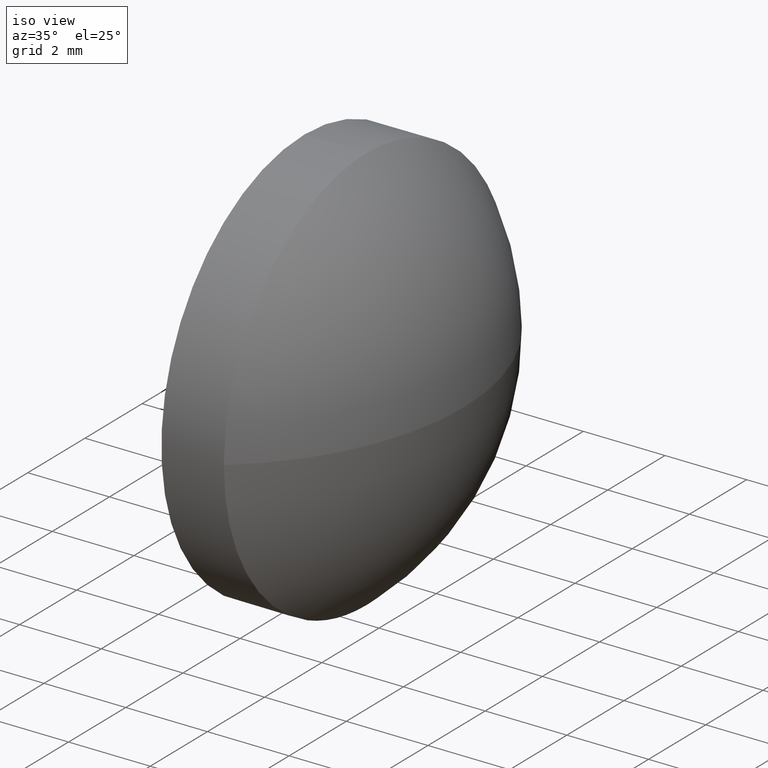
[diagram: clean part render]
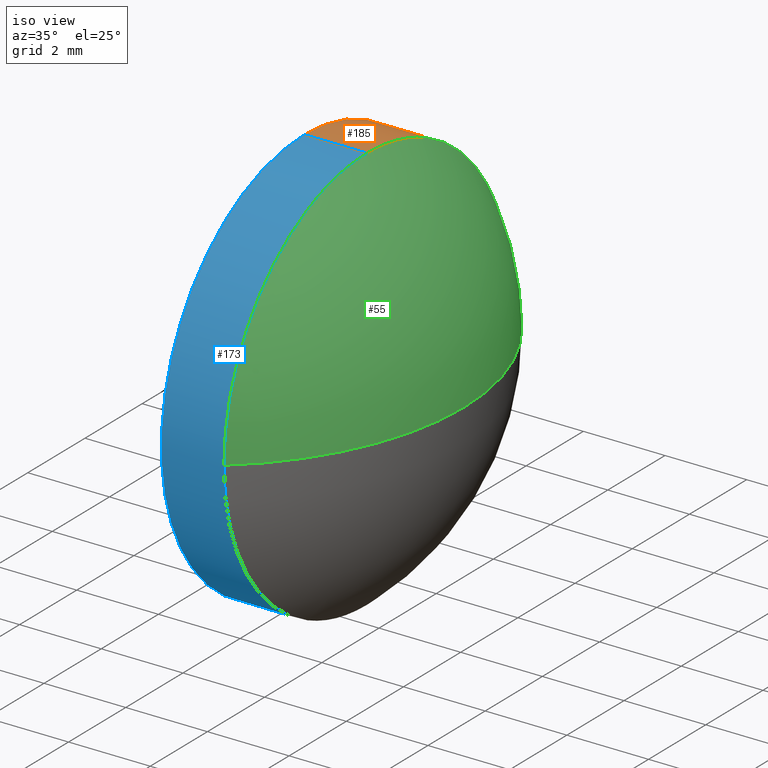
[diagram: same view with three faces highlighted in distinct colors, each labeled with its STEP entity id]
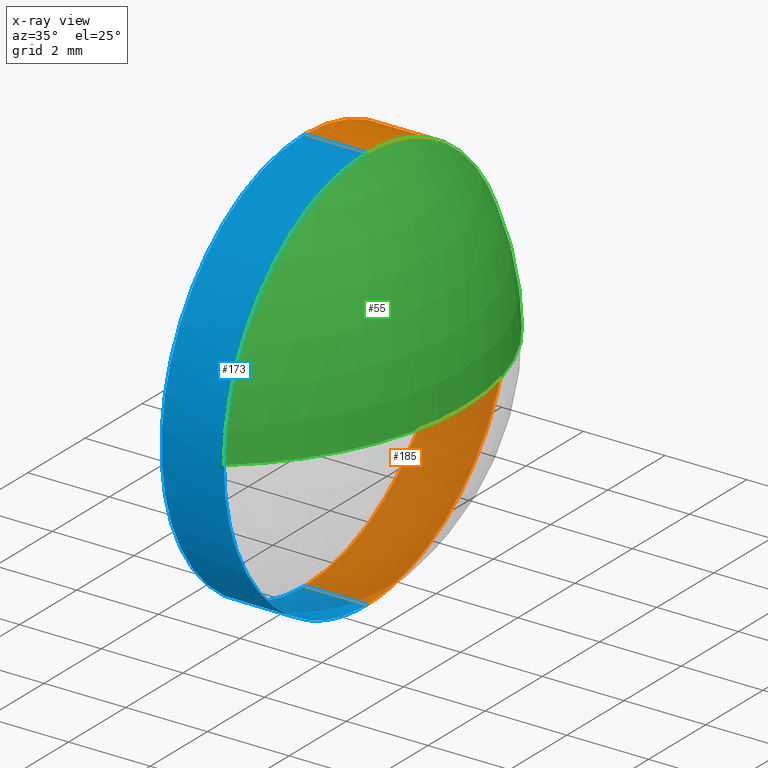
[diagram: x-ray of the same camera — body ghosted, the three highlighted faces saturated]
A machine part, iso view with three faces highlighted in distinct colors.
The next image is the same camera in x-ray (body ghosted, the three faces saturated) — at least one of them is partly hidden behind the body in this view.
Their STEP definitions:

[orange] entity #185 — the highlighted cylindrical surface (partial cylindrical patch) has radius 5 mm, axis along (-1, -0, -0).
#4 = DIRECTION ( 'NONE',  ( -1.000000000000000000, -0.0000000000000000000, -0.0000000000000000000 ) ) ;
#6 = DIRECTION ( 'NONE',  ( -1.000000000000000000, -0.0000000000000000000, -0.0000000000000000000 ) ) ;
#7 = CARTESIAN_POINT ( 'NONE',  ( 535.9096273029953200, 134.3762019213367000, -5.000000000000004400 ) ) ;
#19 = VERTEX_POINT ( 'NONE', #22 ) ;
#21 = ORIENTED_EDGE ( 'NONE', *, *, #24, .T. ) ;
#22 = CARTESIAN_POINT ( 'NONE',  ( 537.4396273029952900, 139.3762019213367000, 0.0000000000000000000 ) ) ;
#24 = EDGE_CURVE ( 'NONE', #139, #36, #82, .T. ) ;
#30 = CARTESIAN_POINT ( 'NONE',  ( 534.6781067289280100, 134.3762019213367000, 0.0000000000000000000 ) ) ;
#36 = VERTEX_POINT ( 'NONE', #7 ) ;
#39 = DIRECTION ( 'NONE',  ( -1.000000000000000000, -0.0000000000000000000, -0.0000000000000000000 ) ) ;
#45 = EDGE_CURVE ( 'NONE', #19, #139, #186, .T. ) ;
#49 = AXIS2_PLACEMENT_3D ( 'NONE', #178, #6, #111 ) ;
#59 = FACE_OUTER_BOUND ( 'NONE', #143, .T. ) ;
#63 = VERTEX_POINT ( 'NONE', #71 ) ;
#68 = CARTESIAN_POINT ( 'NONE',  ( 534.6781067289280100, 134.3762019213367000, -5.000000000000004400 ) ) ;
#71 = CARTESIAN_POINT ( 'NONE',  ( 537.4396273029952900, 134.3762019213367000, 5.000000000000004400 ) ) ;
#74 = LINE ( 'NONE', #157, #107 ) ;
#76 = ORIENTED_EDGE ( 'NONE', *, *, #79, .F. ) ;
#79 = EDGE_CURVE ( 'NONE', #63, #90, #74, .T. ) ;
#82 = LINE ( 'NONE', #68, #175 ) ;
#84 = DIRECTION ( 'NONE',  ( -1.000000000000000000, -0.0000000000000000000, -0.0000000000000000000 ) ) ;
#87 = DIRECTION ( 'NONE',  ( -1.000000000000000000, -0.0000000000000000000, -0.0000000000000000000 ) ) ;
#88 = DIRECTION ( 'NONE',  ( 0.0000000000000000000, 0.0000000000000000000, 1.000000000000000000 ) ) ;
#89 = CYLINDRICAL_SURFACE ( 'NONE', #123, 5.000000000000004400 ) ;
#90 = VERTEX_POINT ( 'NONE', #101 ) ;
#92 = AXIS2_PLACEMENT_3D ( 'NONE', #140, #84, #167 ) ;
#93 = ORIENTED_EDGE ( 'NONE', *, *, #45, .T. ) ;
#101 = CARTESIAN_POINT ( 'NONE',  ( 535.9096273029953200, 134.3762019213367000, 5.000000000000004400 ) ) ;
#103 = EDGE_CURVE ( 'NONE', #63, #19, #181, .T. ) ;
#107 = VECTOR ( 'NONE', #87, 1000.000000000000000 ) ;
#111 = DIRECTION ( 'NONE',  ( 0.0000000000000000000, 0.0000000000000000000, 1.000000000000000000 ) ) ;
#123 = AXIS2_PLACEMENT_3D ( 'NONE', #30, #4, #136 ) ;
#136 = DIRECTION ( 'NONE',  ( 0.0000000000000000000, 0.0000000000000000000, 1.000000000000000000 ) ) ;
#139 = VERTEX_POINT ( 'NONE', #152 ) ;
#140 = CARTESIAN_POINT ( 'NONE',  ( 537.4396273029952900, 134.3762019213367000, 0.0000000000000000000 ) ) ;
#143 = EDGE_LOOP ( 'NONE', ( #93, #21, #174, #76, #171 ) ) ;
#148 = CIRCLE ( 'NONE', #49, 5.000000000000004400 ) ;
#152 = CARTESIAN_POINT ( 'NONE',  ( 537.4396273029952900, 134.3762019213367000, -5.000000000000004400 ) ) ;
#153 = EDGE_CURVE ( 'NONE', #90, #36, #148, .T. ) ;
#157 = CARTESIAN_POINT ( 'NONE',  ( 534.6781067289280100, 134.3762019213367000, 5.000000000000004400 ) ) ;
#158 = CARTESIAN_POINT ( 'NONE',  ( 537.4396273029952900, 134.3762019213367000, 0.0000000000000000000 ) ) ;
#167 = DIRECTION ( 'NONE',  ( 0.0000000000000000000, 0.0000000000000000000, 1.000000000000000000 ) ) ;
#170 = DIRECTION ( 'NONE',  ( -1.000000000000000000, -0.0000000000000000000, -0.0000000000000000000 ) ) ;
#171 = ORIENTED_EDGE ( 'NONE', *, *, #103, .T. ) ;
#174 = ORIENTED_EDGE ( 'NONE', *, *, #153, .F. ) ;
#175 = VECTOR ( 'NONE', #39, 1000.000000000000000 ) ;
#178 = CARTESIAN_POINT ( 'NONE',  ( 535.9096273029953200, 134.3762019213367000, 0.0000000000000000000 ) ) ;
#180 = AXIS2_PLACEMENT_3D ( 'NONE', #158, #170, #88 ) ;
#181 = CIRCLE ( 'NONE', #180, 5.000000000000004400 ) ;
#185 = ADVANCED_FACE ( 'NONE', ( #59 ), #89, .T. ) ;
#186 = CIRCLE ( 'NONE', #92, 5.000000000000004400 ) ;

[blue] entity #173 — the highlighted cylindrical surface (partial cylindrical patch) has radius 5 mm, axis along (-1, -0, -0).
#1 = EDGE_CURVE ( 'NONE', #12, #63, #51, .T. ) ;
#2 = ORIENTED_EDGE ( 'NONE', *, *, #145, .F. ) ;
#7 = CARTESIAN_POINT ( 'NONE',  ( 535.9096273029953200, 134.3762019213367000, -5.000000000000004400 ) ) ;
#8 = CARTESIAN_POINT ( 'NONE',  ( 537.4396273029952900, 129.3762019213367000, -6.123233995736764300E-016 ) ) ;
#12 = VERTEX_POINT ( 'NONE', #8 ) ;
#24 = EDGE_CURVE ( 'NONE', #139, #36, #82, .T. ) ;
#34 = AXIS2_PLACEMENT_3D ( 'NONE', #166, #41, #118 ) ;
#36 = VERTEX_POINT ( 'NONE', #7 ) ;
#39 = DIRECTION ( 'NONE',  ( -1.000000000000000000, -0.0000000000000000000, -0.0000000000000000000 ) ) ;
#40 = CYLINDRICAL_SURFACE ( 'NONE', #141, 5.000000000000004400 ) ;
#41 = DIRECTION ( 'NONE',  ( -1.000000000000000000, -0.0000000000000000000, -0.0000000000000000000 ) ) ;
#43 = CARTESIAN_POINT ( 'NONE',  ( 537.4396273029952900, 134.3762019213367000, 0.0000000000000000000 ) ) ;
#44 = DIRECTION ( 'NONE',  ( -1.000000000000000000, -0.0000000000000000000, -0.0000000000000000000 ) ) ;
#46 = ORIENTED_EDGE ( 'NONE', *, *, #61, .T. ) ;
#51 = CIRCLE ( 'NONE', #34, 5.000000000000004400 ) ;
#57 = AXIS2_PLACEMENT_3D ( 'NONE', #95, #126, #164 ) ;
#61 = EDGE_CURVE ( 'NONE', #139, #12, #106, .T. ) ;
#63 = VERTEX_POINT ( 'NONE', #71 ) ;
#67 = ORIENTED_EDGE ( 'NONE', *, *, #1, .T. ) ;
#68 = CARTESIAN_POINT ( 'NONE',  ( 534.6781067289280100, 134.3762019213367000, -5.000000000000004400 ) ) ;
#71 = CARTESIAN_POINT ( 'NONE',  ( 537.4396273029952900, 134.3762019213367000, 5.000000000000004400 ) ) ;
#74 = LINE ( 'NONE', #157, #107 ) ;
#79 = EDGE_CURVE ( 'NONE', #63, #90, #74, .T. ) ;
#82 = LINE ( 'NONE', #68, #175 ) ;
#83 = AXIS2_PLACEMENT_3D ( 'NONE', #43, #44, #91 ) ;
#86 = FACE_OUTER_BOUND ( 'NONE', #114, .T. ) ;
#87 = DIRECTION ( 'NONE',  ( -1.000000000000000000, -0.0000000000000000000, -0.0000000000000000000 ) ) ;
#90 = VERTEX_POINT ( 'NONE', #101 ) ;
#91 = DIRECTION ( 'NONE',  ( 0.0000000000000000000, 0.0000000000000000000, 1.000000000000000000 ) ) ;
#95 = CARTESIAN_POINT ( 'NONE',  ( 535.9096273029953200, 134.3762019213367000, 0.0000000000000000000 ) ) ;
#96 = ORIENTED_EDGE ( 'NONE', *, *, #79, .T. ) ;
#97 = DIRECTION ( 'NONE',  ( -1.000000000000000000, -0.0000000000000000000, -0.0000000000000000000 ) ) ;
#101 = CARTESIAN_POINT ( 'NONE',  ( 535.9096273029953200, 134.3762019213367000, 5.000000000000004400 ) ) ;
#106 = CIRCLE ( 'NONE', #83, 5.000000000000004400 ) ;
#107 = VECTOR ( 'NONE', #87, 1000.000000000000000 ) ;
#109 = ORIENTED_EDGE ( 'NONE', *, *, #24, .F. ) ;
#114 = EDGE_LOOP ( 'NONE', ( #109, #46, #67, #96, #2 ) ) ;
#117 = CIRCLE ( 'NONE', #57, 5.000000000000004400 ) ;
#118 = DIRECTION ( 'NONE',  ( 0.0000000000000000000, 0.0000000000000000000, 1.000000000000000000 ) ) ;
#126 = DIRECTION ( 'NONE',  ( -1.000000000000000000, -0.0000000000000000000, -0.0000000000000000000 ) ) ;
#137 = DIRECTION ( 'NONE',  ( 0.0000000000000000000, 0.0000000000000000000, 1.000000000000000000 ) ) ;
#139 = VERTEX_POINT ( 'NONE', #152 ) ;
#141 = AXIS2_PLACEMENT_3D ( 'NONE', #179, #97, #137 ) ;
#145 = EDGE_CURVE ( 'NONE', #36, #90, #117, .T. ) ;
#152 = CARTESIAN_POINT ( 'NONE',  ( 537.4396273029952900, 134.3762019213367000, -5.000000000000004400 ) ) ;
#157 = CARTESIAN_POINT ( 'NONE',  ( 534.6781067289280100, 134.3762019213367000, 5.000000000000004400 ) ) ;
#164 = DIRECTION ( 'NONE',  ( 0.0000000000000000000, 0.0000000000000000000, 1.000000000000000000 ) ) ;
#166 = CARTESIAN_POINT ( 'NONE',  ( 537.4396273029952900, 134.3762019213367000, 0.0000000000000000000 ) ) ;
#173 = ADVANCED_FACE ( 'NONE', ( #86 ), #40, .T. ) ;
#175 = VECTOR ( 'NONE', #39, 1000.000000000000000 ) ;
#179 = CARTESIAN_POINT ( 'NONE',  ( 534.6781067289280100, 134.3762019213367000, 0.0000000000000000000 ) ) ;

[green] entity #55 — the highlighted spherical surface has radius 6.4593 mm.
#1 = EDGE_CURVE ( 'NONE', #12, #63, #51, .T. ) ;
#8 = CARTESIAN_POINT ( 'NONE',  ( 537.4396273029952900, 129.3762019213367000, -6.123233995736764300E-016 ) ) ;
#10 = AXIS2_PLACEMENT_3D ( 'NONE', #184, #119, #65 ) ;
#11 = CIRCLE ( 'NONE', #147, 6.459261603375510100 ) ;
#12 = VERTEX_POINT ( 'NONE', #8 ) ;
#18 = DIRECTION ( 'NONE',  ( 0.0000000000000000000, 1.224646799147353200E-016, -1.000000000000000000 ) ) ;
#19 = VERTEX_POINT ( 'NONE', #22 ) ;
#22 = CARTESIAN_POINT ( 'NONE',  ( 537.4396273029952900, 139.3762019213367000, 0.0000000000000000000 ) ) ;
#27 = AXIS2_PLACEMENT_3D ( 'NONE', #129, #142, #52 ) ;
#28 = CIRCLE ( 'NONE', #10, 6.459261603375510100 ) ;
#34 = AXIS2_PLACEMENT_3D ( 'NONE', #166, #41, #118 ) ;
#41 = DIRECTION ( 'NONE',  ( -1.000000000000000000, -0.0000000000000000000, -0.0000000000000000000 ) ) ;
#48 = SPHERICAL_SURFACE ( 'NONE', #27, 6.459261603375520800 ) ;
#51 = CIRCLE ( 'NONE', #34, 5.000000000000004400 ) ;
#52 = DIRECTION ( 'NONE',  ( 0.0000000000000000000, 1.000000000000000000, 0.0000000000000000000 ) ) ;
#55 = ADVANCED_FACE ( 'NONE', ( #131 ), #48, .T. ) ;
#56 = ORIENTED_EDGE ( 'NONE', *, *, #134, .F. ) ;
#63 = VERTEX_POINT ( 'NONE', #71 ) ;
#65 = DIRECTION ( 'NONE',  ( 1.000000000000000000, 0.0000000000000000000, 0.0000000000000000000 ) ) ;
#71 = CARTESIAN_POINT ( 'NONE',  ( 537.4396273029952900, 134.3762019213367000, 5.000000000000004400 ) ) ;
#80 = DIRECTION ( 'NONE',  ( 0.0000000000000000000, 1.000000000000000000, 1.224646799147355200E-016 ) ) ;
#88 = DIRECTION ( 'NONE',  ( 0.0000000000000000000, 0.0000000000000000000, 1.000000000000000000 ) ) ;
#102 = ORIENTED_EDGE ( 'NONE', *, *, #103, .F. ) ;
#103 = EDGE_CURVE ( 'NONE', #63, #19, #181, .T. ) ;
#104 = EDGE_CURVE ( 'NONE', #122, #19, #28, .T. ) ;
#118 = DIRECTION ( 'NONE',  ( 0.0000000000000000000, 0.0000000000000000000, 1.000000000000000000 ) ) ;
#119 = DIRECTION ( 'NONE',  ( -0.0000000000000000000, 0.0000000000000000000, 1.000000000000000000 ) ) ;
#120 = ORIENTED_EDGE ( 'NONE', *, *, #104, .T. ) ;
#122 = VERTEX_POINT ( 'NONE', #183 ) ;
#129 = CARTESIAN_POINT ( 'NONE',  ( 533.3503656996198300, 134.3762019213367000, 0.0000000000000000000 ) ) ;
#131 = FACE_OUTER_BOUND ( 'NONE', #149, .T. ) ;
#134 = EDGE_CURVE ( 'NONE', #122, #12, #11, .T. ) ;
#142 = DIRECTION ( 'NONE',  ( -0.0000000000000000000, 0.0000000000000000000, -1.000000000000000000 ) ) ;
#147 = AXIS2_PLACEMENT_3D ( 'NONE', #163, #18, #80 ) ;
#149 = EDGE_LOOP ( 'NONE', ( #56, #120, #102, #182 ) ) ;
#158 = CARTESIAN_POINT ( 'NONE',  ( 537.4396273029952900, 134.3762019213367000, 0.0000000000000000000 ) ) ;
#163 = CARTESIAN_POINT ( 'NONE',  ( 533.3503656996198300, 134.3762019213367000, 0.0000000000000000000 ) ) ;
#166 = CARTESIAN_POINT ( 'NONE',  ( 537.4396273029952900, 134.3762019213367000, 0.0000000000000000000 ) ) ;
#170 = DIRECTION ( 'NONE',  ( -1.000000000000000000, -0.0000000000000000000, -0.0000000000000000000 ) ) ;
#180 = AXIS2_PLACEMENT_3D ( 'NONE', #158, #170, #88 ) ;
#181 = CIRCLE ( 'NONE', #180, 5.000000000000004400 ) ;
#182 = ORIENTED_EDGE ( 'NONE', *, *, #1, .F. ) ;
#183 = CARTESIAN_POINT ( 'NONE',  ( 539.8096273029953000, 134.3762019213367000, 0.0000000000000000000 ) ) ;
#184 = CARTESIAN_POINT ( 'NONE',  ( 533.3503656996198300, 134.3762019213367000, 0.0000000000000000000 ) ) ;